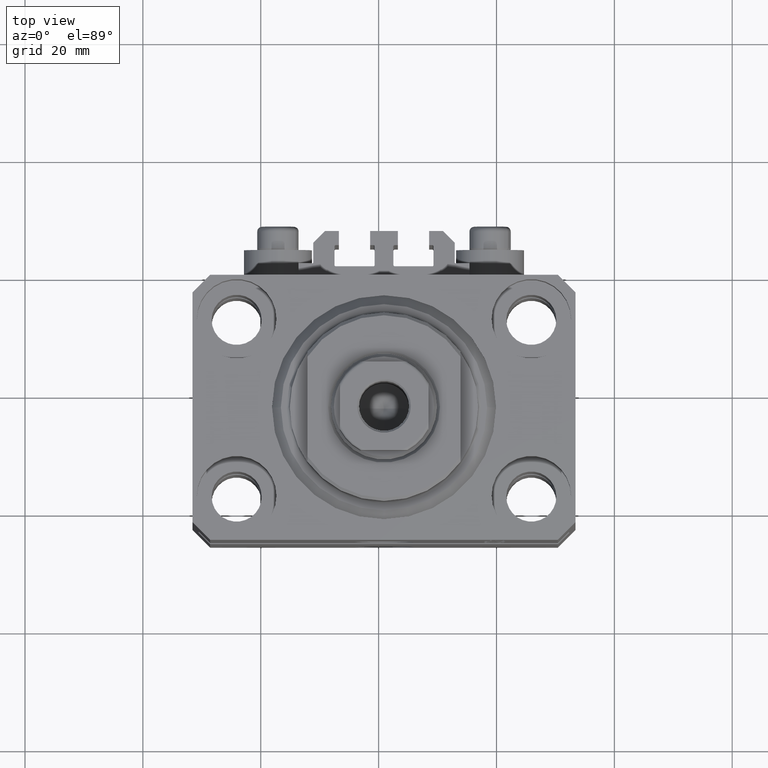
[diagram: clean part render]
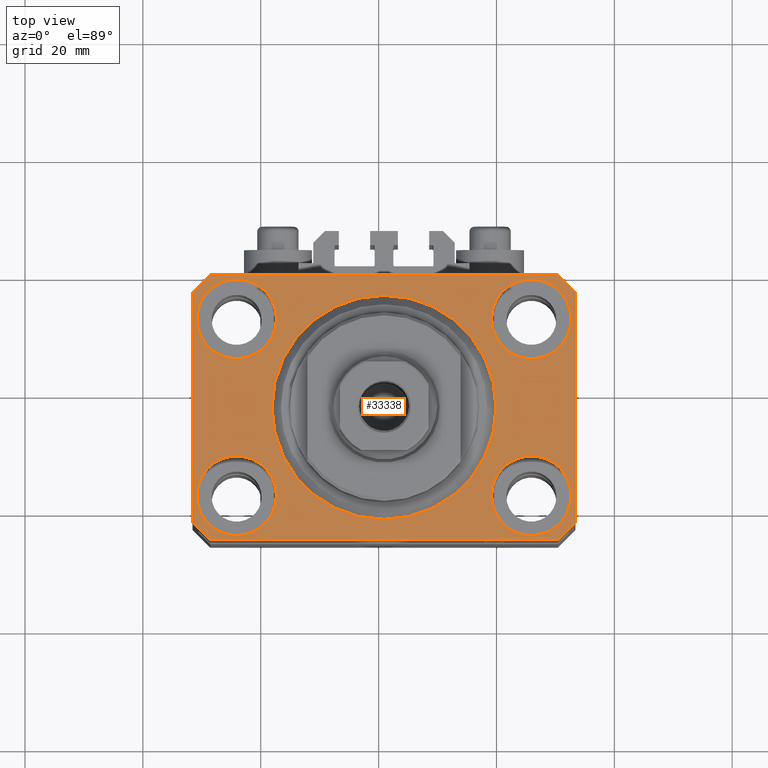
[diagram: same view with one face highlighted and labeled with its STEP entity id]
A machine part, top view. The second image highlights one B-rep face of the part: STEP entity #33338.
In plain terms, the highlighted planar face has unit normal (0, 0, 1).
Its self-contained STEP definition (entity closure, byte-faithful):
#199 = VECTOR ( 'NONE', #15215, 1000.000000000000000 ) ;
#754 = CARTESIAN_POINT ( 'NONE',  ( 32.49999999999702993, 19.49999999999945999, 0.000000000000000000 ) ) ;
#1648 = ORIENTED_EDGE ( 'NONE', *, *, #10152, .F. ) ;
#1793 = CIRCLE ( 'NONE', #21598, 6.749999999977465137 ) ;
#1833 = CARTESIAN_POINT ( 'NONE',  ( 19.00000000000000000, 0.000000000000000000, 0.000000000000000000 ) ) ;
#1969 = CARTESIAN_POINT ( 'NONE',  ( 0.000000000000000000, 0.000000000000000000, 0.000000000000000000 ) ) ;
#1988 = LINE ( 'NONE', #41812, #23668 ) ;
#2141 = EDGE_CURVE ( 'NONE', #33754, #32698, #18782, .T. ) ;
#2689 = DIRECTION ( 'NONE',  ( 1.000000000000000000, 0.000000000000000000, 0.000000000000000000 ) ) ;
#2841 = ORIENTED_EDGE ( 'NONE', *, *, #19339, .F. ) ;
#3011 = AXIS2_PLACEMENT_3D ( 'NONE', #10872, #29206, #39731 ) ;
#3160 = ORIENTED_EDGE ( 'NONE', *, *, #33168, .F. ) ;
#3279 = ORIENTED_EDGE ( 'NONE', *, *, #17305, .T. ) ;
#3587 = ORIENTED_EDGE ( 'NONE', *, *, #33877, .T. ) ;
#3655 = VERTEX_POINT ( 'NONE', #41184 ) ;
#3857 = VERTEX_POINT ( 'NONE', #46634 ) ;
#4217 = EDGE_CURVE ( 'NONE', #25904, #14415, #1793, .T. ) ;
#4442 = DIRECTION ( 'NONE',  ( 0.000000000000000000, 0.000000000000000000, 1.000000000000000000 ) ) ;
#4936 = CARTESIAN_POINT ( 'NONE',  ( -29.49999999999650413, -22.49999999999949907, 0.000000000000000000 ) ) ;
#5020 = FACE_BOUND ( 'NONE', #37358, .T. ) ;
#6530 = DIRECTION ( 'NONE',  ( 0.000000000000000000, 0.000000000000000000, 1.000000000000000000 ) ) ;
#6599 = DIRECTION ( 'NONE',  ( -1.000000000000000000, -2.352167425053553784E-16, 0.000000000000000000 ) ) ;
#7091 = VERTEX_POINT ( 'NONE', #4936 ) ;
#7377 = DIRECTION ( 'NONE',  ( 1.000000000000000000, 0.000000000000000000, 0.000000000000000000 ) ) ;
#7470 = CARTESIAN_POINT ( 'NONE',  ( -32.49999999999650413, -19.49999999999949907, 0.000000000000000000 ) ) ;
#8036 = EDGE_LOOP ( 'NONE', ( #34961, #1648 ) ) ;
#8401 = DIRECTION ( 'NONE',  ( 1.000000000000000000, 0.000000000000000000, 0.000000000000000000 ) ) ;
#8597 = FACE_BOUND ( 'NONE', #32753, .T. ) ;
#8884 = ORIENTED_EDGE ( 'NONE', *, *, #24887, .T. ) ;
#9594 = CARTESIAN_POINT ( 'NONE',  ( -29.49999999999650413, 22.49999999999949907, 0.000000000000000000 ) ) ;
#9922 = VERTEX_POINT ( 'NONE', #40928 ) ;
#9995 = AXIS2_PLACEMENT_3D ( 'NONE', #26502, #41072, #8401 ) ;
#10100 = DIRECTION ( 'NONE',  ( 0.000000000000000000, 0.000000000000000000, 1.000000000000000000 ) ) ;
#10152 = EDGE_CURVE ( 'NONE', #9922, #27230, #27132, .T. ) ;
#10872 = CARTESIAN_POINT ( 'NONE',  ( 24.99999999999999645, 15.00000000000000888, 0.000000000000000000 ) ) ;
#11130 = VERTEX_POINT ( 'NONE', #26110 ) ;
#11368 = VECTOR ( 'NONE', #25881, 1000.000000000000000 ) ;
#12402 = AXIS2_PLACEMENT_3D ( 'NONE', #47209, #29760, #7377 ) ;
#12638 = FACE_BOUND ( 'NONE', #8036, .T. ) ;
#12719 = CARTESIAN_POINT ( 'NONE',  ( 25.00000000000000355, -15.00000000000000000, 0.000000000000000000 ) ) ;
#12969 = DIRECTION ( 'NONE',  ( 1.000000000000000000, 0.000000000000000000, 0.000000000000000000 ) ) ;
#13300 = VERTEX_POINT ( 'NONE', #31952 ) ;
#13520 = ORIENTED_EDGE ( 'NONE', *, *, #26034, .F. ) ;
#13879 = CARTESIAN_POINT ( 'NONE',  ( -25.00000000000000355, -15.00000000000000000, 0.000000000000000000 ) ) ;
#13894 = CARTESIAN_POINT ( 'NONE',  ( 32.49999999999651124, -19.49999999999949196, 0.000000000000000000 ) ) ;
#13944 = VECTOR ( 'NONE', #45358, 1000.000000000000114 ) ;
#14114 = DIRECTION ( 'NONE',  ( 1.000000000000000000, 0.000000000000000000, 0.000000000000000000 ) ) ;
#14415 = VERTEX_POINT ( 'NONE', #16180 ) ;
#14486 = VERTEX_POINT ( 'NONE', #45990 ) ;
#15215 = DIRECTION ( 'NONE',  ( 0.000000000000000000, -1.000000000000000000, 0.000000000000000000 ) ) ;
#15297 = LINE ( 'NONE', #754, #34140 ) ;
#15397 = LINE ( 'NONE', #22075, #11368 ) ;
#15982 = FACE_BOUND ( 'NONE', #16645, .T. ) ;
#16180 = CARTESIAN_POINT ( 'NONE',  ( 18.25000000002253842, -15.00000000000000000, 0.000000000000000000 ) ) ;
#16361 = VERTEX_POINT ( 'NONE', #47067 ) ;
#16433 = PLANE ( 'NONE',  #20005 ) ;
#16440 = CARTESIAN_POINT ( 'NONE',  ( -18.24999999995846167, -15.00000000000000000, 0.000000000000000000 ) ) ;
#16645 = EDGE_LOOP ( 'NONE', ( #33859, #25426 ) ) ;
#16824 = VECTOR ( 'NONE', #40358, 1000.000000000000114 ) ;
#17305 = EDGE_CURVE ( 'NONE', #44600, #28132, #15397, .T. ) ;
#18680 = ORIENTED_EDGE ( 'NONE', *, *, #46539, .F. ) ;
#18782 = LINE ( 'NONE', #33321, #199 ) ;
#19339 = EDGE_CURVE ( 'NONE', #45054, #13300, #21964, .T. ) ;
#19427 = EDGE_CURVE ( 'NONE', #11130, #37300, #15297, .T. ) ;
#19551 = DIRECTION ( 'NONE',  ( 0.000000000000000000, 0.000000000000000000, 1.000000000000000000 ) ) ;
#19789 = CARTESIAN_POINT ( 'NONE',  ( -29.49999999999650413, -22.49999999999949907, 0.000000000000000000 ) ) ;
#19977 = CIRCLE ( 'NONE', #29885, 19.00000000000000000 ) ;
#20005 = AXIS2_PLACEMENT_3D ( 'NONE', #26942, #19551, #41041 ) ;
#20105 = CARTESIAN_POINT ( 'NONE',  ( 25.00000000000000355, -15.00000000000000000, 0.000000000000000000 ) ) ;
#20214 = ORIENTED_EDGE ( 'NONE', *, *, #22263, .T. ) ;
#20797 = DIRECTION ( 'NONE',  ( 0.000000000000000000, 0.000000000000000000, 1.000000000000000000 ) ) ;
#21190 = ORIENTED_EDGE ( 'NONE', *, *, #34239, .F. ) ;
#21598 = AXIS2_PLACEMENT_3D ( 'NONE', #12719, #10100, #34880 ) ;
#21964 = CIRCLE ( 'NONE', #33407, 6.750000000022533087 ) ;
#22075 = CARTESIAN_POINT ( 'NONE',  ( 29.49999999999650413, -22.49999999999949196, 0.000000000000000000 ) ) ;
#22263 = EDGE_CURVE ( 'NONE', #37300, #16361, #46895, .T. ) ;
#22318 = DIRECTION ( 'NONE',  ( 1.000000000000000000, 0.000000000000000000, 0.000000000000000000 ) ) ;
#22450 = LINE ( 'NONE', #36997, #16824 ) ;
#22785 = CARTESIAN_POINT ( 'NONE',  ( -25.00000000000000355, 15.00000000000000000, 0.000000000000000000 ) ) ;
#23022 = ORIENTED_EDGE ( 'NONE', *, *, #19427, .T. ) ;
#23288 = DIRECTION ( 'NONE',  ( 1.000000000000000000, 0.000000000000000000, 0.000000000000000000 ) ) ;
#23525 = CIRCLE ( 'NONE', #3011, 6.749999999958452790 ) ;
#23668 = VECTOR ( 'NONE', #24145, 1000.000000000000000 ) ;
#23813 = DIRECTION ( 'NONE',  ( 1.000000000000000000, 1.176083712526788232E-16, 0.000000000000000000 ) ) ;
#23887 = DIRECTION ( 'NONE',  ( 1.000000000000000000, 0.000000000000000000, 0.000000000000000000 ) ) ;
#24145 = DIRECTION ( 'NONE',  ( 1.334402673828349134E-14, 1.000000000000000000, 0.000000000000000000 ) ) ;
#24264 = EDGE_LOOP ( 'NONE', ( #18680, #3160 ) ) ;
#24887 = EDGE_CURVE ( 'NONE', #32698, #7091, #22450, .T. ) ;
#25426 = ORIENTED_EDGE ( 'NONE', *, *, #35733, .F. ) ;
#25788 = EDGE_CURVE ( 'NONE', #28132, #11130, #1988, .T. ) ;
#25881 = DIRECTION ( 'NONE',  ( 0.7071067811865483499, 0.7071067811865466846, 0.000000000000000000 ) ) ;
#25904 = VERTEX_POINT ( 'NONE', #28451 ) ;
#26034 = EDGE_CURVE ( 'NONE', #13300, #45054, #30524, .T. ) ;
#26110 = CARTESIAN_POINT ( 'NONE',  ( 32.49999999999702993, 19.49999999999945999, 0.000000000000000000 ) ) ;
#26387 = AXIS2_PLACEMENT_3D ( 'NONE', #1969, #20797, #2689 ) ;
#26502 = CARTESIAN_POINT ( 'NONE',  ( -25.00000000000000355, 15.00000000000000000, 0.000000000000000000 ) ) ;
#26664 = DIRECTION ( 'NONE',  ( 0.000000000000000000, 0.000000000000000000, 1.000000000000000000 ) ) ;
#26942 = CARTESIAN_POINT ( 'NONE',  ( 0.000000000000000000, 0.000000000000000000, 0.000000000000000000 ) ) ;
#27132 = CIRCLE ( 'NONE', #26387, 19.00000000000000000 ) ;
#27230 = VERTEX_POINT ( 'NONE', #1833 ) ;
#28132 = VERTEX_POINT ( 'NONE', #13894 ) ;
#28451 = CARTESIAN_POINT ( 'NONE',  ( 31.74999999997746869, -15.00000000000000000, 0.000000000000000000 ) ) ;
#28470 = CIRCLE ( 'NONE', #33803, 6.749999999977465137 ) ;
#28898 = EDGE_CURVE ( 'NONE', #27230, #9922, #19977, .T. ) ;
#29206 = DIRECTION ( 'NONE',  ( 0.000000000000000000, 0.000000000000000000, 1.000000000000000000 ) ) ;
#29760 = DIRECTION ( 'NONE',  ( 0.000000000000000000, 0.000000000000000000, 1.000000000000000000 ) ) ;
#29820 = DIRECTION ( 'NONE',  ( -0.7071067811865352493, 0.7071067811865597852, 0.000000000000000000 ) ) ;
#29885 = AXIS2_PLACEMENT_3D ( 'NONE', #45370, #34167, #23887 ) ;
#30251 = ORIENTED_EDGE ( 'NONE', *, *, #46235, .T. ) ;
#30524 = CIRCLE ( 'NONE', #9995, 6.750000000022533087 ) ;
#30652 = CIRCLE ( 'NONE', #36022, 6.750000000041541881 ) ;
#30792 = LINE ( 'NONE', #9594, #13944 ) ;
#31952 = CARTESIAN_POINT ( 'NONE',  ( -18.24999999997747224, 15.00000000000000000, 0.000000000000000000 ) ) ;
#32698 = VERTEX_POINT ( 'NONE', #7470 ) ;
#32753 = EDGE_LOOP ( 'NONE', ( #13520, #2841 ) ) ;
#32951 = CIRCLE ( 'NONE', #12402, 6.749999999958452790 ) ;
#33168 = EDGE_CURVE ( 'NONE', #3655, #40799, #30652, .T. ) ;
#33321 = CARTESIAN_POINT ( 'NONE',  ( -32.49999999999650413, 19.49999999999949907, 0.000000000000000000 ) ) ;
#33338 = ADVANCED_FACE ( 'NONE', ( #36742, #15982, #5020, #8597, #12638, #34786 ), #16433, .T. ) ;
#33407 = AXIS2_PLACEMENT_3D ( 'NONE', #22785, #4442, #22318 ) ;
#33754 = VERTEX_POINT ( 'NONE', #35214 ) ;
#33803 = AXIS2_PLACEMENT_3D ( 'NONE', #20105, #6530, #12969 ) ;
#33859 = ORIENTED_EDGE ( 'NONE', *, *, #4217, .F. ) ;
#33877 = EDGE_CURVE ( 'NONE', #16361, #33754, #30792, .T. ) ;
#34140 = VECTOR ( 'NONE', #29820, 1000.000000000000000 ) ;
#34167 = DIRECTION ( 'NONE',  ( 0.000000000000000000, 0.000000000000000000, 1.000000000000000000 ) ) ;
#34239 = EDGE_CURVE ( 'NONE', #3857, #14486, #32951, .T. ) ;
#34758 = ORIENTED_EDGE ( 'NONE', *, *, #47058, .F. ) ;
#34786 = FACE_OUTER_BOUND ( 'NONE', #40784, .T. ) ;
#34880 = DIRECTION ( 'NONE',  ( 1.000000000000000000, 0.000000000000000000, 0.000000000000000000 ) ) ;
#34949 = VECTOR ( 'NONE', #23813, 1000.000000000000000 ) ;
#34961 = ORIENTED_EDGE ( 'NONE', *, *, #28898, .F. ) ;
#34983 = AXIS2_PLACEMENT_3D ( 'NONE', #41450, #26664, #23288 ) ;
#35086 = CARTESIAN_POINT ( 'NONE',  ( -31.75000000002253842, 15.00000000000000000, 0.000000000000000000 ) ) ;
#35214 = CARTESIAN_POINT ( 'NONE',  ( -32.49999999999650413, 19.49999999999949907, 0.000000000000000000 ) ) ;
#35329 = DIRECTION ( 'NONE',  ( 0.000000000000000000, 0.000000000000000000, 1.000000000000000000 ) ) ;
#35733 = EDGE_CURVE ( 'NONE', #14415, #25904, #28470, .T. ) ;
#36022 = AXIS2_PLACEMENT_3D ( 'NONE', #13879, #35329, #14114 ) ;
#36742 = FACE_BOUND ( 'NONE', #24264, .T. ) ;
#36997 = CARTESIAN_POINT ( 'NONE',  ( -32.49999999999650413, -19.49999999999949907, 0.000000000000000000 ) ) ;
#37300 = VERTEX_POINT ( 'NONE', #45282 ) ;
#37358 = EDGE_LOOP ( 'NONE', ( #21190, #34758 ) ) ;
#39277 = CARTESIAN_POINT ( 'NONE',  ( 29.49999999999707967, 22.49999999999951328, 0.000000000000000000 ) ) ;
#39731 = DIRECTION ( 'NONE',  ( 1.000000000000000000, 0.000000000000000000, 0.000000000000000000 ) ) ;
#40358 = DIRECTION ( 'NONE',  ( 0.7071067811865474617, -0.7071067811865474617, 0.000000000000000000 ) ) ;
#40441 = CARTESIAN_POINT ( 'NONE',  ( 29.49999999999650413, -22.49999999999949196, 0.000000000000000000 ) ) ;
#40784 = EDGE_LOOP ( 'NONE', ( #20214, #3587, #44033, #8884, #30251, #3279, #45203, #23022 ) ) ;
#40799 = VERTEX_POINT ( 'NONE', #16440 ) ;
#40928 = CARTESIAN_POINT ( 'NONE',  ( -19.00000000000000000, 2.326828918379970970E-15, 0.000000000000000000 ) ) ;
#41041 = DIRECTION ( 'NONE',  ( 1.000000000000000000, 0.000000000000000000, -0.000000000000000000 ) ) ;
#41072 = DIRECTION ( 'NONE',  ( 0.000000000000000000, 0.000000000000000000, 1.000000000000000000 ) ) ;
#41184 = CARTESIAN_POINT ( 'NONE',  ( -31.75000000004154899, -15.00000000000000000, 0.000000000000000000 ) ) ;
#41450 = CARTESIAN_POINT ( 'NONE',  ( -25.00000000000000355, -15.00000000000000000, 0.000000000000000000 ) ) ;
#41812 = CARTESIAN_POINT ( 'NONE',  ( 32.49999999999651124, -19.49999999999949196, 0.000000000000000000 ) ) ;
#44033 = ORIENTED_EDGE ( 'NONE', *, *, #2141, .T. ) ;
#44600 = VERTEX_POINT ( 'NONE', #40441 ) ;
#44842 = LINE ( 'NONE', #19789, #34949 ) ;
#45054 = VERTEX_POINT ( 'NONE', #35086 ) ;
#45203 = ORIENTED_EDGE ( 'NONE', *, *, #25788, .T. ) ;
#45282 = CARTESIAN_POINT ( 'NONE',  ( 29.49999999999707967, 22.49999999999951328, 0.000000000000000000 ) ) ;
#45358 = DIRECTION ( 'NONE',  ( -0.7071067811865474617, -0.7071067811865474617, 0.000000000000000000 ) ) ;
#45370 = CARTESIAN_POINT ( 'NONE',  ( 0.000000000000000000, 0.000000000000000000, 0.000000000000000000 ) ) ;
#45990 = CARTESIAN_POINT ( 'NONE',  ( 18.25000000004154543, 15.00000000000000888, 0.000000000000000000 ) ) ;
#46235 = EDGE_CURVE ( 'NONE', #7091, #44600, #44842, .T. ) ;
#46416 = CIRCLE ( 'NONE', #34983, 6.750000000041541881 ) ;
#46539 = EDGE_CURVE ( 'NONE', #40799, #3655, #46416, .T. ) ;
#46634 = CARTESIAN_POINT ( 'NONE',  ( 31.74999999995845101, 15.00000000000000888, 0.000000000000000000 ) ) ;
#46895 = LINE ( 'NONE', #39277, #47179 ) ;
#47058 = EDGE_CURVE ( 'NONE', #14486, #3857, #23525, .T. ) ;
#47067 = CARTESIAN_POINT ( 'NONE',  ( -29.49999999999650413, 22.49999999999949907, 0.000000000000000000 ) ) ;
#47179 = VECTOR ( 'NONE', #6599, 1000.000000000000000 ) ;
#47209 = CARTESIAN_POINT ( 'NONE',  ( 24.99999999999999645, 15.00000000000000888, 0.000000000000000000 ) ) ;